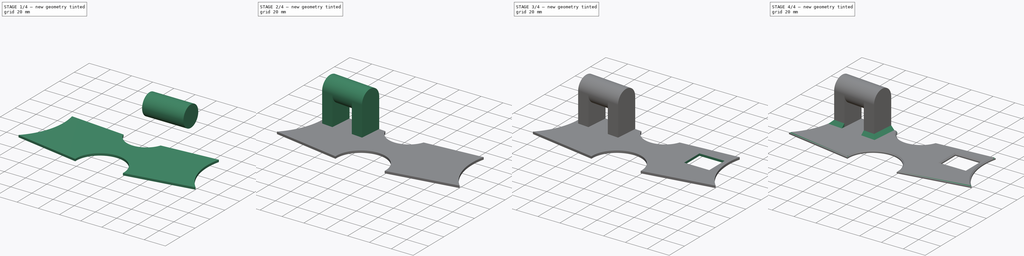
[diagram: build sequence overview — one tinted view per stage of 4, left to right]
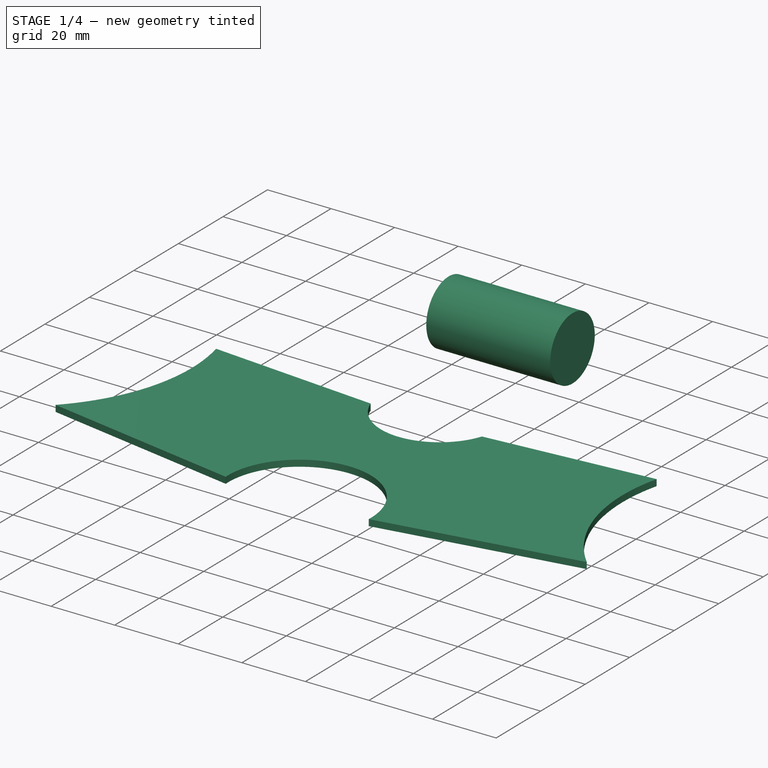
[diagram: stage 1 of 4 — iso view after this stage's code; geometry added in this stage tinted green]
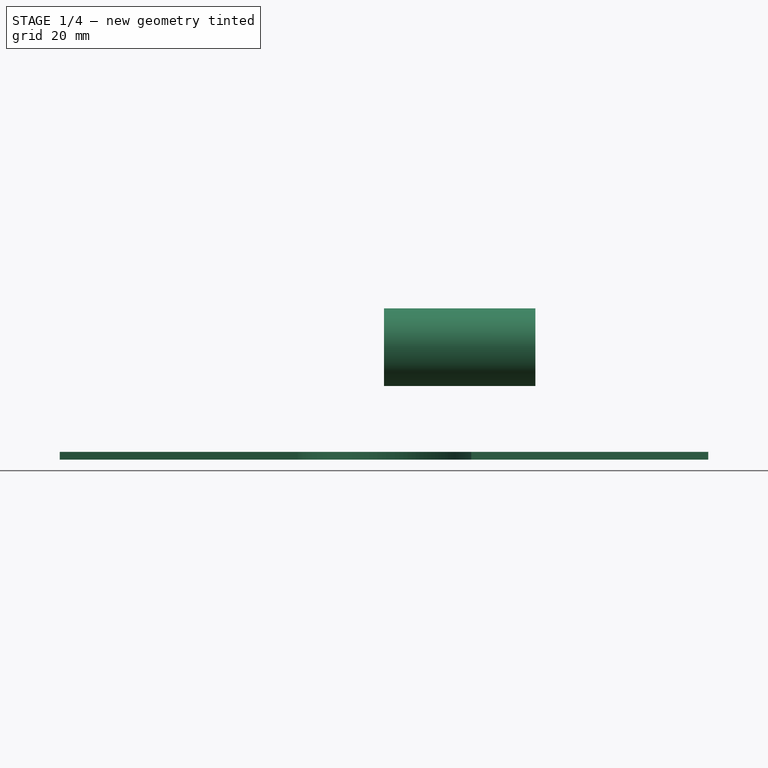
[diagram: stage 1 of 4 — front view after this stage's code; geometry added in this stage tinted green]
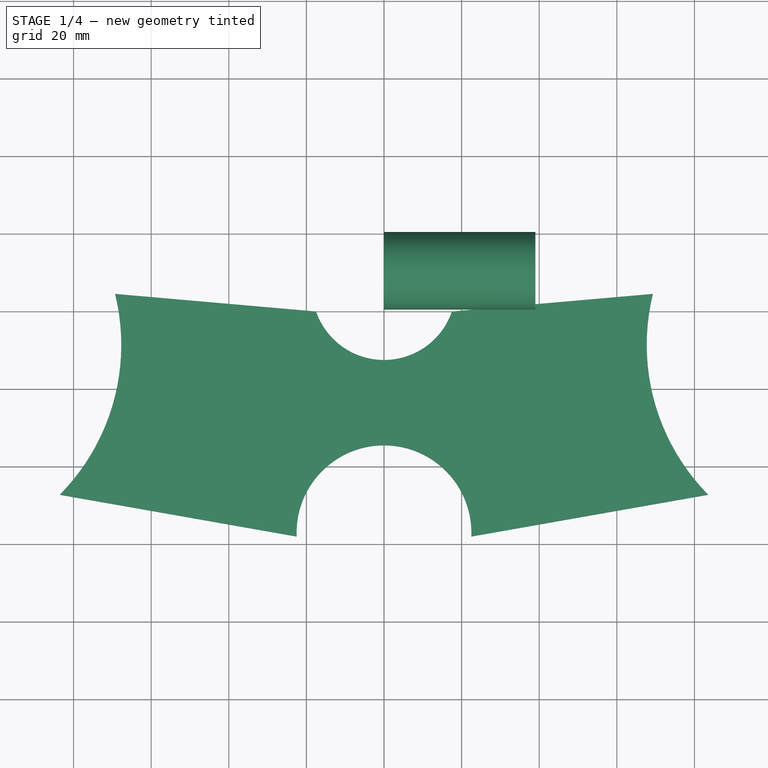
[diagram: stage 1 of 4 — top view after this stage's code; geometry added in this stage tinted green]
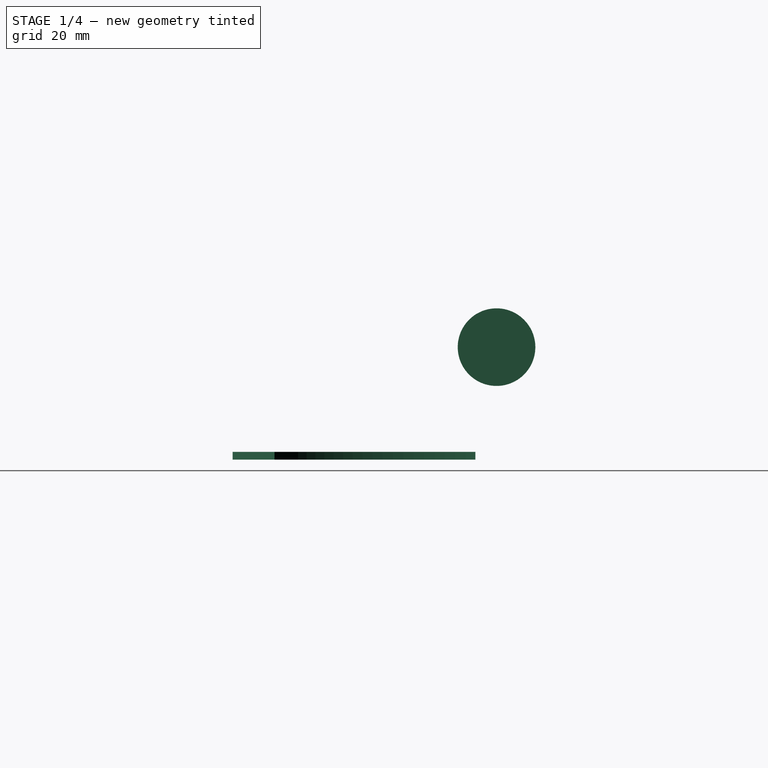
[diagram: stage 1 of 4 — right view after this stage's code; geometry added in this stage tinted green]
FCSTD DOCUMENT  (FreeCAD 0.18R16093 +53 (Git))
Label: ProtectorTijaCBR_V6
License: All rights reserved
LicenseURL: http://en.wikipedia.org/wiki/All_rights_reserved
objects: Part::Box×3, Part::MultiFuse×2, Part::Chamfer×2, Part::Cylinder×1, Sketcher::SketchObject×1, PartDesign::Pad×1, Part::Cut×1, PartDesign::Body×1
note: 13 computed .brp shape members not serialized (recipe doc carries the construction recipe); baked Part::Feature solids carry a one-line shape summary decoded from their .brp

FEATURE [Part::Cylinder] Cylinder001
  Angle = 360
  AttacherType = Attacher::AttachEngine3D
  Height = 39
  Placement = pos=(0,10,29) rot=(0,1,0;1.5708rad)
  Radius = 10
FEATURE [Sketcher::SketchObject] Sketch
  MapMode = 5
  Support = -> [XY_Plane]
  sketch-geometry (11):
    g0: LineSegment StartX=-69.3021 StartY=4.5321 StartZ=0 EndX=-17.5 EndY=2.7e-15 EndZ=0
    g1: LineSegment StartX=17.5 StartY=-3.6e-15 StartZ=0 EndX=69.3021 EndY=4.5321 EndZ=0
    g2: LineSegment StartX=83.5581 StartY=-47.2338 StartZ=0 EndX=22.5 EndY=-58 EndZ=0
    g3: LineSegment StartX=-22.5 StartY=-58 StartZ=0 EndX=-83.5581 EndY=-47.2338 EndZ=0
    g4: ArcOfCircle CenterX=-5e-16 CenterY=6 CenterZ=0 NormalX=0 NormalY=0 NormalZ=1 AngleXU=0 Radius=18.5 StartAngle=3.47189 EndAngle=5.95289
    g5: ArcOfCircle CenterX=-2e-16 CenterY=-57.0213 CenterZ=0 NormalX=0 NormalY=0 NormalZ=1 AngleXU=0 Radius=22.5213 StartAngle=6.23971 EndAngle=9.46825
    g6: LineSegment [constr] StartX=0 StartY=88.9787 StartZ=0 EndX=0 EndY=-111.021 EndZ=0
    g7: LineSegment [constr] StartX=-214.302 StartY=0 StartZ=0 EndX=185.698 EndY=0 EndZ=0
    g8: ArcOfCircle CenterX=122.71 CenterY=-8.60572 CenterZ=0 NormalX=0 NormalY=0 NormalZ=1 AngleXU=0 Radius=55 StartAngle=2.90039 EndAngle=3.92026
    g9: ArcOfCircle CenterX=-122.71 CenterY=-8.60572 CenterZ=0 NormalX=0 NormalY=0 NormalZ=1 AngleXU=0 Radius=55 StartAngle=5.50452 EndAngle=6.52439
    g10: LineSegment [constr] StartX=0 StartY=-12.5 StartZ=0 EndX=0 EndY=-34.5 EndZ=0
  constraints (36):
    c: Symmetric(g3,g2,g-2)
    c: Symmetric(g0,g1,g-2)
    c: Coincident(g4,g0)
    c: Coincident(g4,g1)
    c: Symmetric(g0,g1,g-2)
    c: Coincident(g5,g3)
    c: Coincident(g5,g2)
    c: Symmetric(g3,g2,g-2)
    c: Vertical(g6)
    c: Horizontal(g7)
    c: PointOnObject(g6,g-2)
    c: PointOnObject(g1,g7)
    c: Angle(g1,g7) = 3.05433
    c: Angle(g2,g-1) = 2.96706
    c: DistanceX(g0,g1) = 35
    c: DistanceX(g3,g2) = 45
    c: Distance(g1,g1) = 52
    c: Distance(g2,g2) = 62
    c: DistanceY(g3,g0) = 58
    c: Coincident(g8,g2)
    c: Coincident(g8,g1)
    c: Coincident(g9,g3)
    c: Coincident(g9,g0)
    c: Radius(g8) = 55
    c: Radius(g9) = 55
    c: DistanceY(g6,g6) = 200
    c: DistanceX(g7,g7) = 400
    c: PointOnObject(g7,g-1)
    c: DistanceX(g7,g0) = 145
    c: DistanceY(g6,g5) = 54
    c: Vertical(g10)
    c: PointOnObject(g10,g4)
    c: PointOnObject(g10,g5)
    c: PointOnObject(g10,g6)
    c: DistanceY(g10,g10) = 22
    c: DistanceY(g10,g-1) = 12.5
FEATURE [PartDesign::Pad] Pad
  Length = 2
  Length2 = 100
  Profile = -> Sketch
  Type = 0
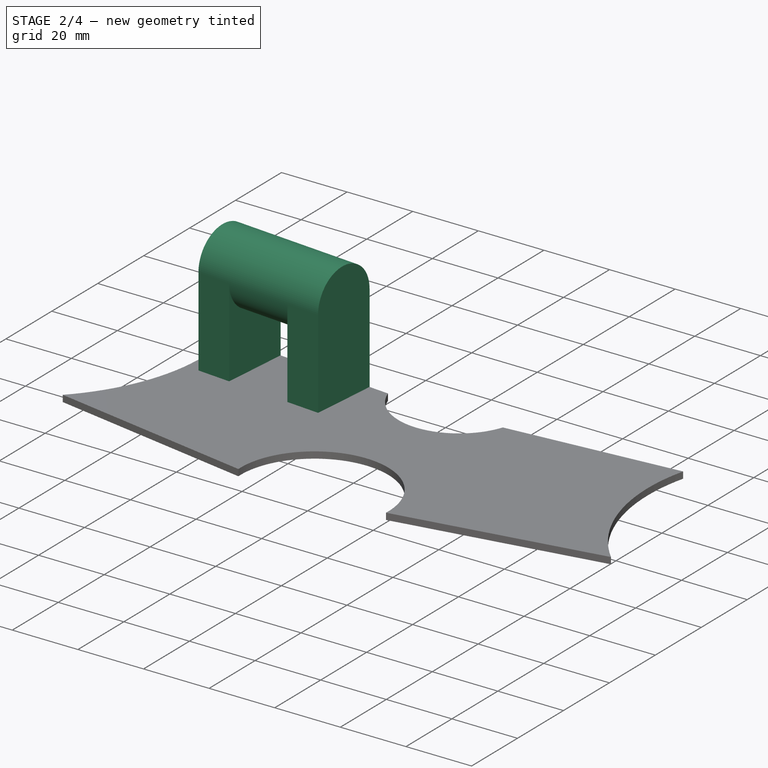
[diagram: stage 2 of 4 — iso view after this stage's code; geometry added in this stage tinted green]
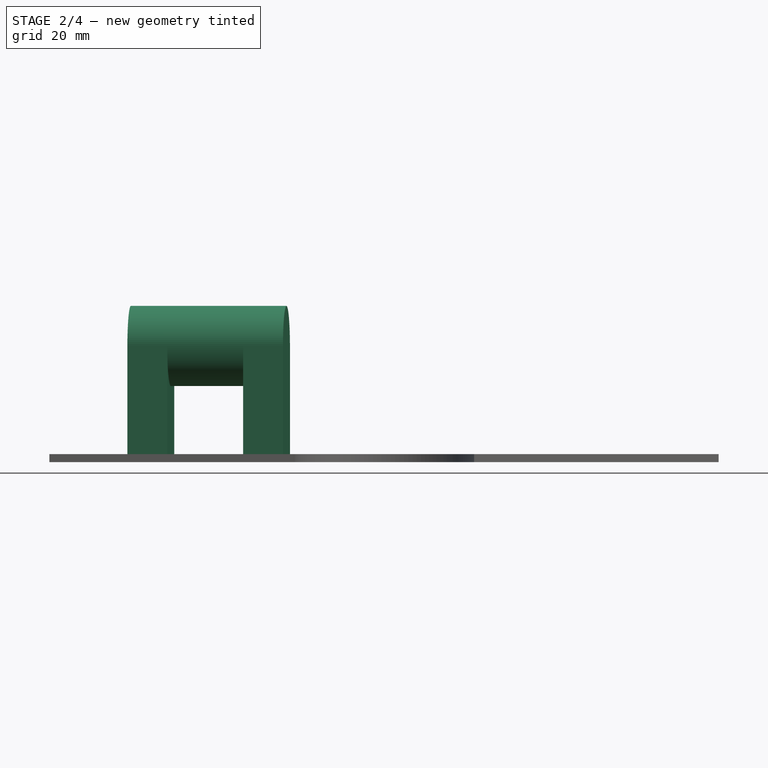
[diagram: stage 2 of 4 — front view after this stage's code; geometry added in this stage tinted green]
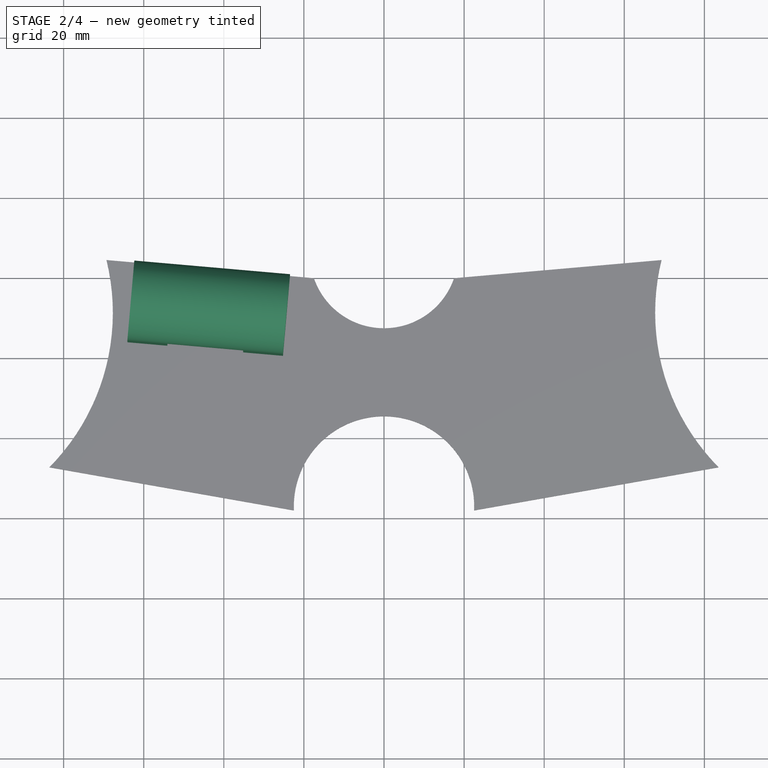
[diagram: stage 2 of 4 — top view after this stage's code; geometry added in this stage tinted green]
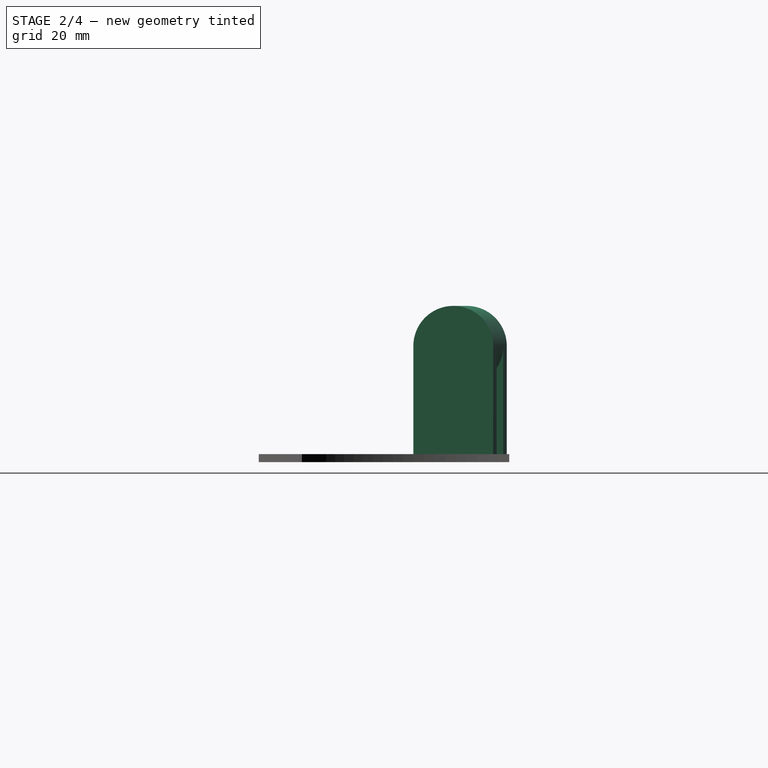
[diagram: stage 2 of 4 — right view after this stage's code; geometry added in this stage tinted green]
FEATURE [Part::Box] Box003  label="Cube003"
  AttacherType = Attacher::AttachEngine3D
  Height = 29
  Length = 10
  Width = 20
FEATURE [Part::Box] Box004  label="Cube004"
  AttacherType = Attacher::AttachEngine3D
  Height = 29
  Length = 10
  Placement = pos=(29,0,0) rot=(0,0,1;0rad)
  Width = 20
FEATURE [Part::MultiFuse] Fusion
  Placement = pos=(-64.08,-16,0) rot=(0,0,-1;0.087266rad)
  Shapes = -> [Cylinder001,Box004,Box003]
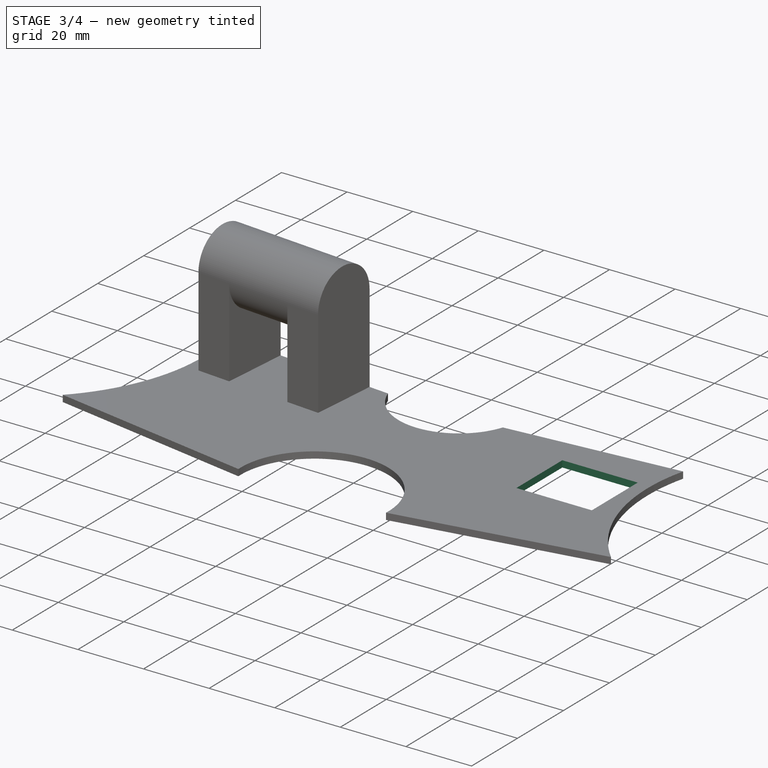
[diagram: stage 3 of 4 — iso view after this stage's code; geometry added in this stage tinted green]
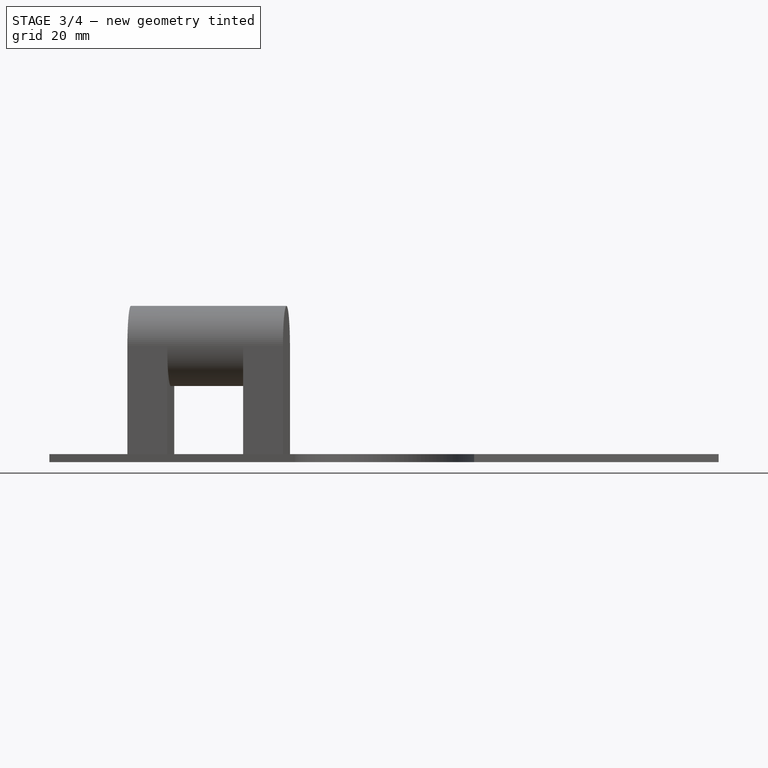
[diagram: stage 3 of 4 — front view after this stage's code; geometry added in this stage tinted green]
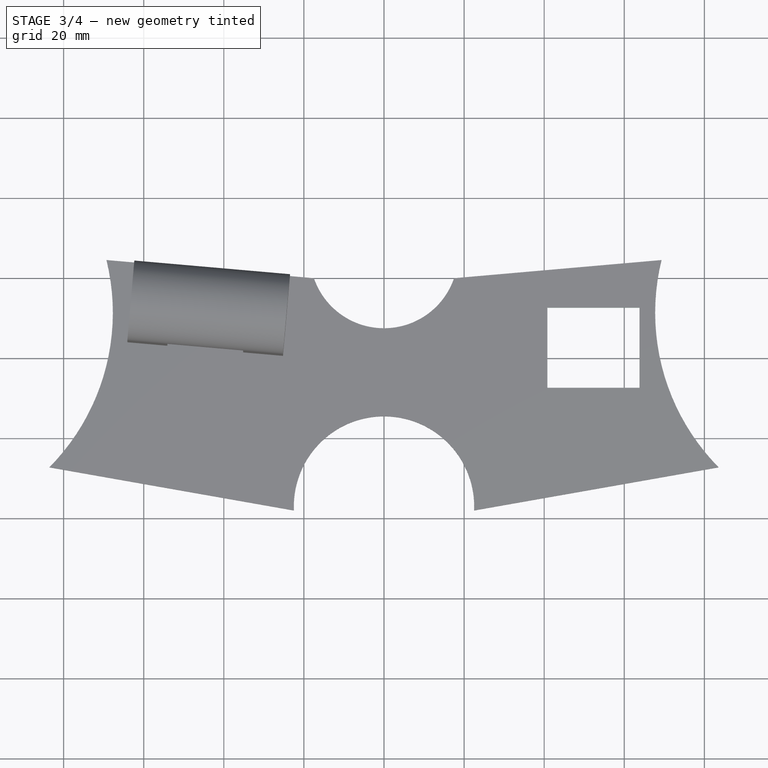
[diagram: stage 3 of 4 — top view after this stage's code; geometry added in this stage tinted green]
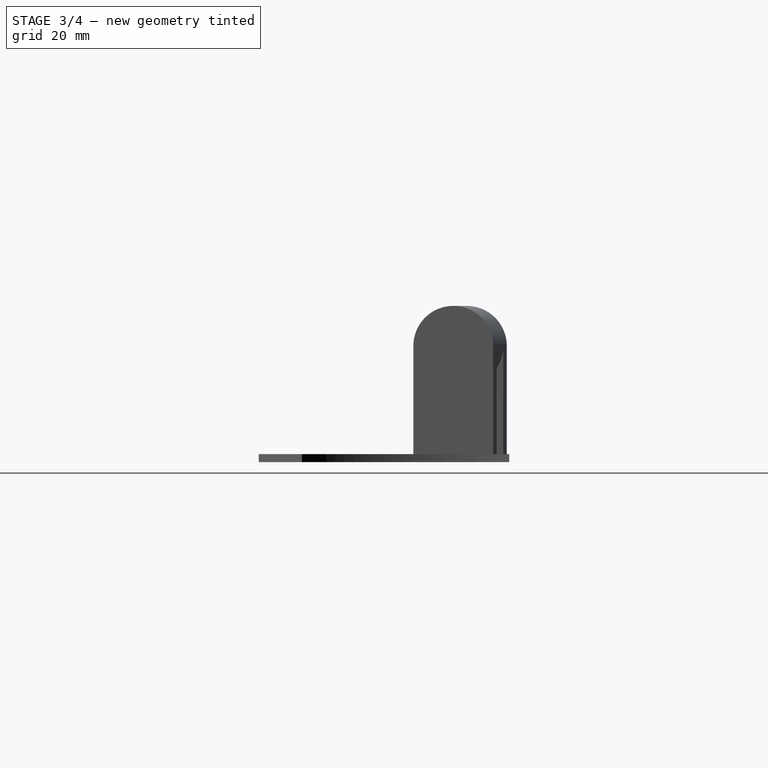
[diagram: stage 3 of 4 — right view after this stage's code; geometry added in this stage tinted green]
FEATURE [Part::Box] Box  label="Cube"
  AttacherType = Attacher::AttachEngine3D
  Height = 2
  Length = 23
  Placement = pos=(40.79,-27.36,0) rot=(0,0,1;0rad)
  Width = 20
FEATURE [Part::Cut] Cut
  Base = -> Pad
  Tool = -> Box
FEATURE [PartDesign::Body] Body
  Group = -> [Sketch,Pad]
  Origin = -> Origin
  Tip = -> Pad
FEATURE [Part::MultiFuse] Fusion001
  Shapes = -> [Cut,Fusion]
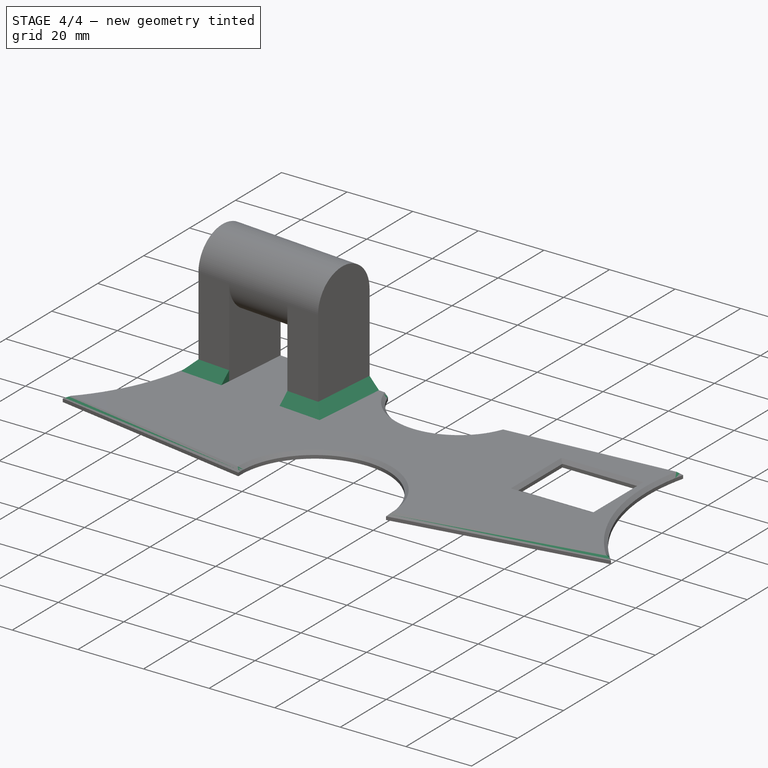
[diagram: stage 4 of 4 — iso view after this stage's code; geometry added in this stage tinted green]
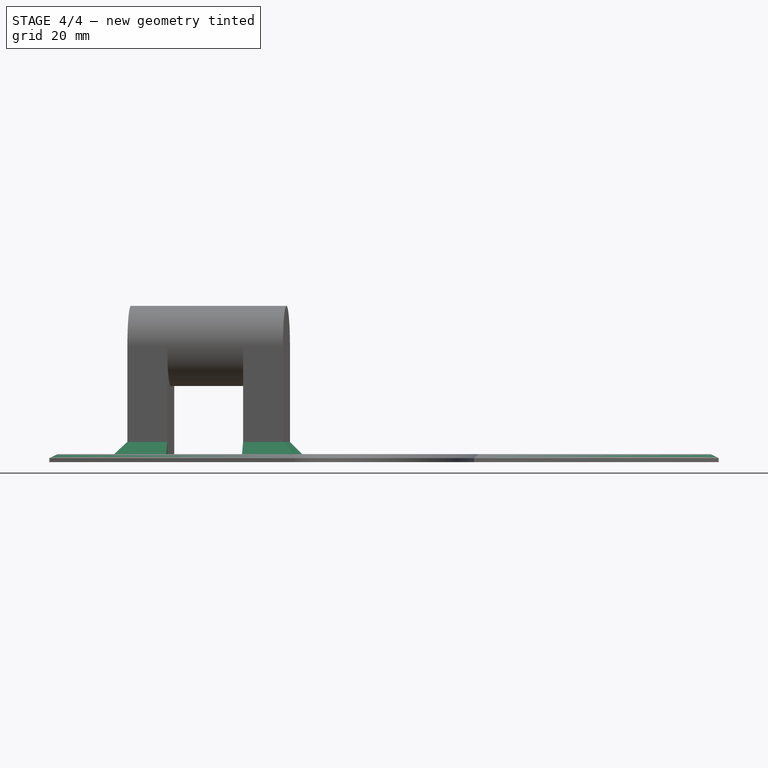
[diagram: stage 4 of 4 — front view after this stage's code; geometry added in this stage tinted green]
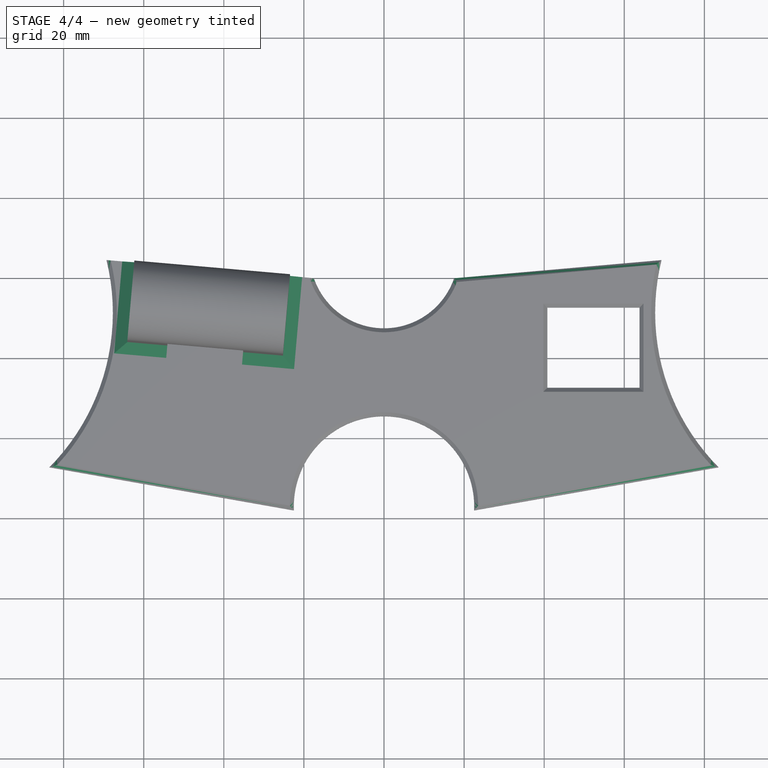
[diagram: stage 4 of 4 — top view after this stage's code; geometry added in this stage tinted green]
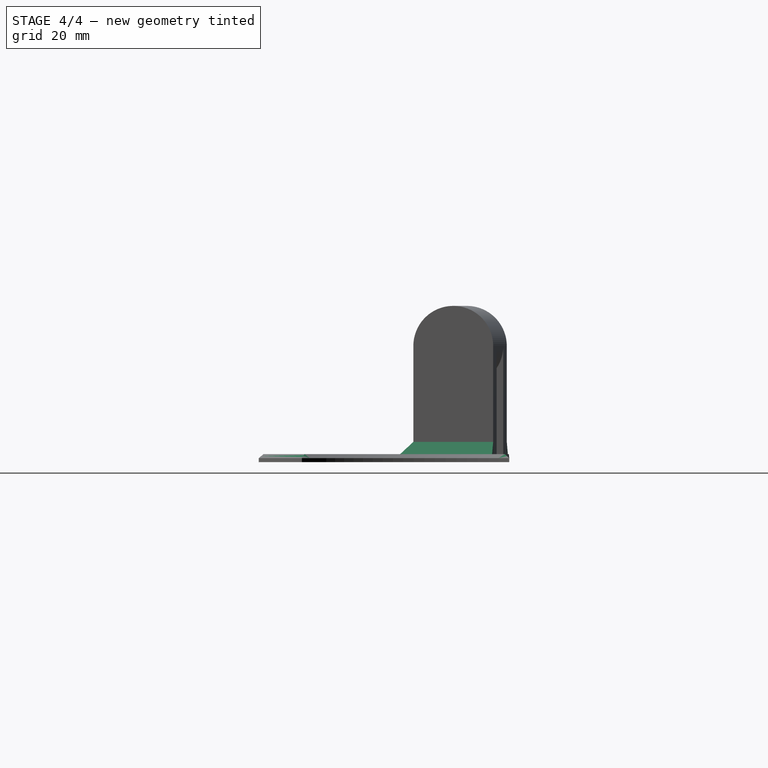
[diagram: stage 4 of 4 — right view after this stage's code; geometry added in this stage tinted green]
FEATURE [Part::Chamfer] Chamfer
  Base = -> Fusion001
  Edges = 11 edges r=1: [Edge30,Edge31,Edge32,Edge33,Edge34,Edge35,Edge36,Edge44,Edge45,Edge46,Edge47]
FEATURE [Part::Chamfer] Chamfer001
  Base = -> Chamfer
  Edges = 4 edges r=3.05: [Edge8,Edge10,Edge18,Edge20]
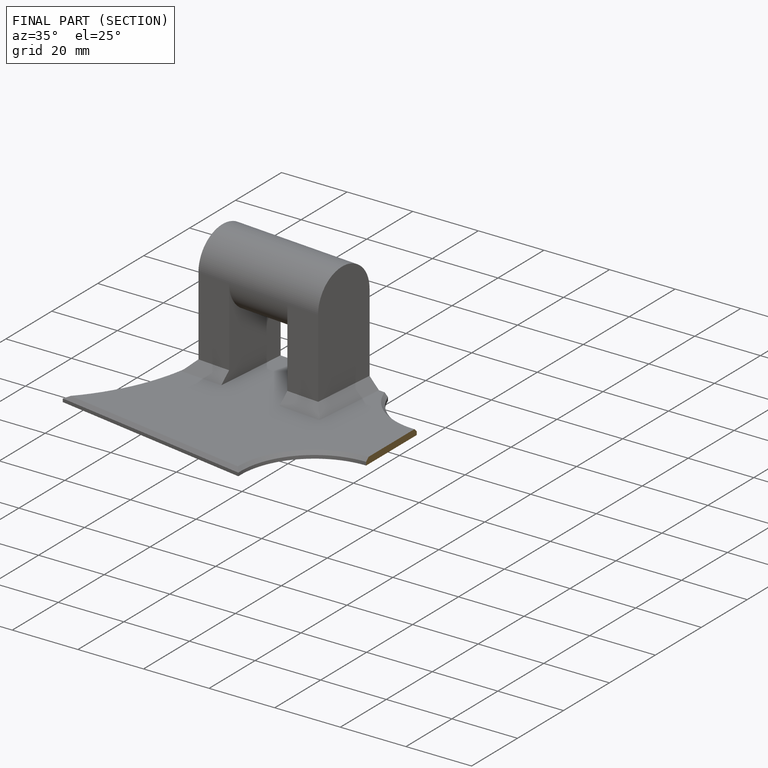
[diagram: finished part — half-section view (interior)]
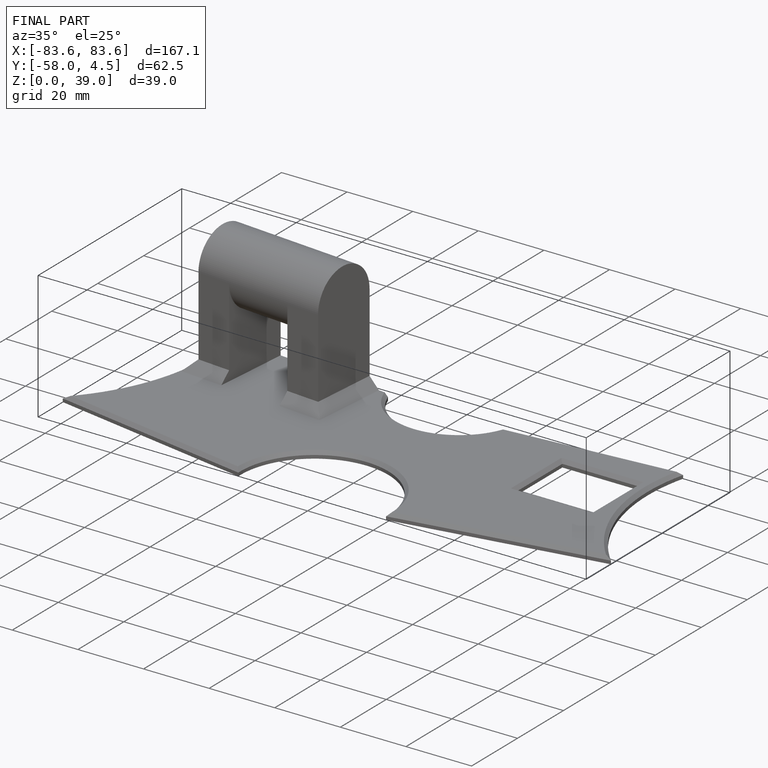
[diagram: finished part — iso view with bounding-box wireframe]
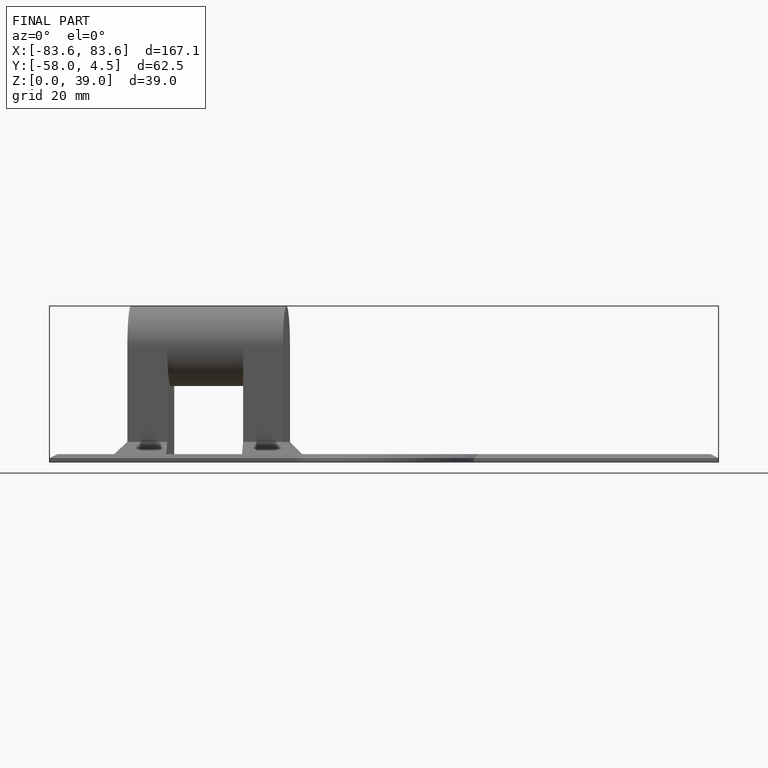
[diagram: finished part — front view with bounding-box wireframe]
